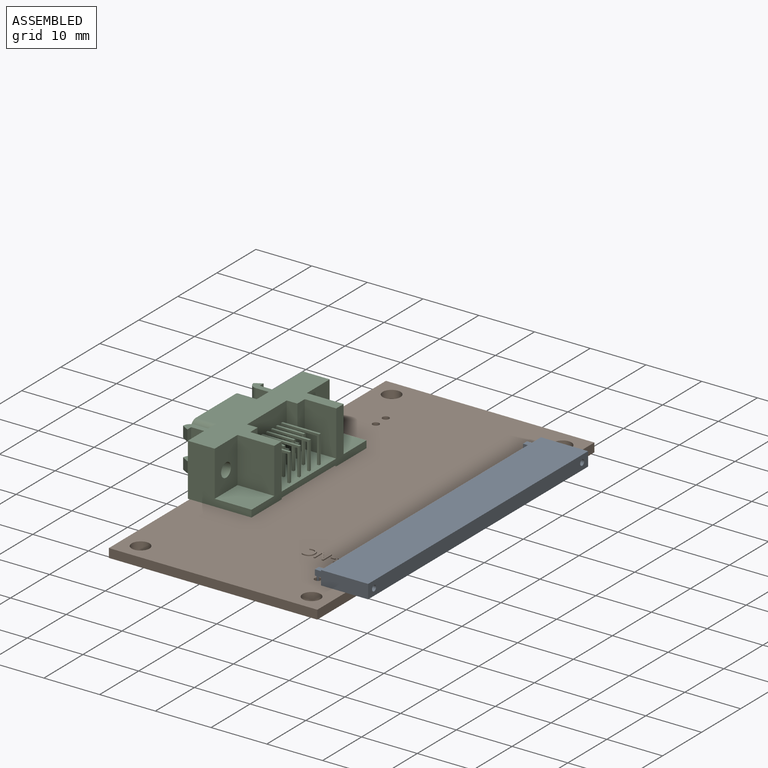
[diagram: assembled view]
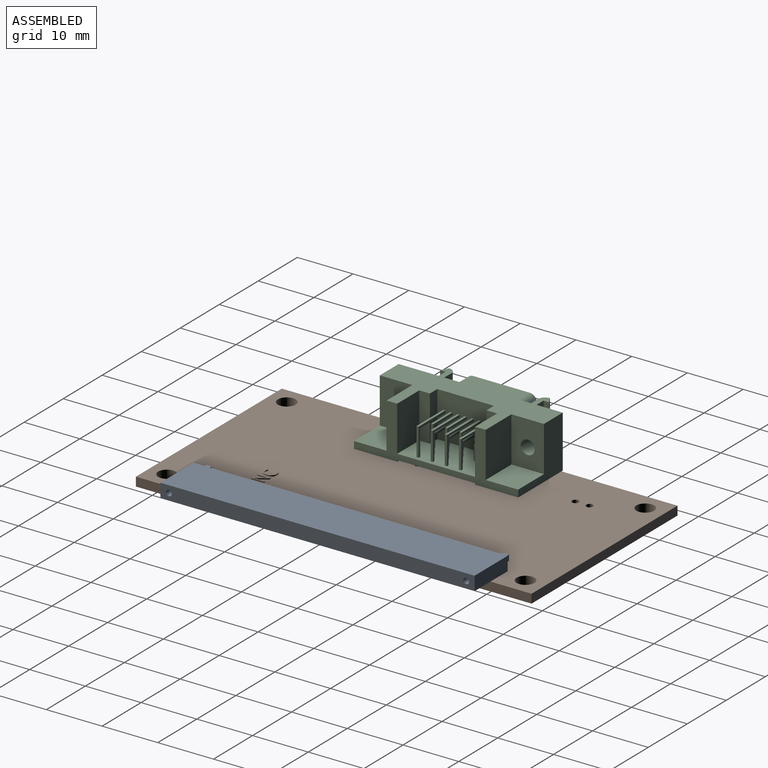
[diagram: assembled view, second angle]
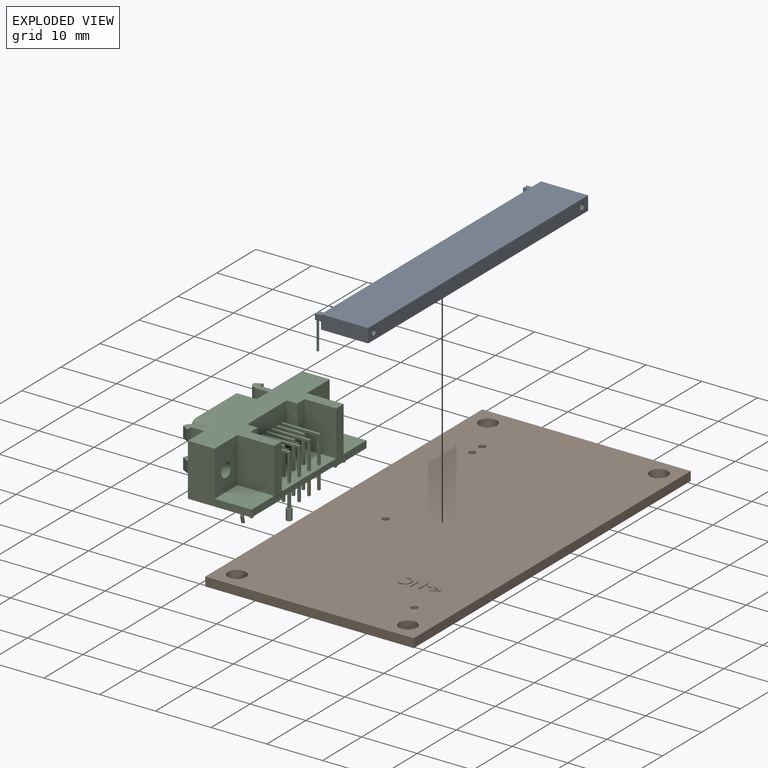
[diagram: exploded view]
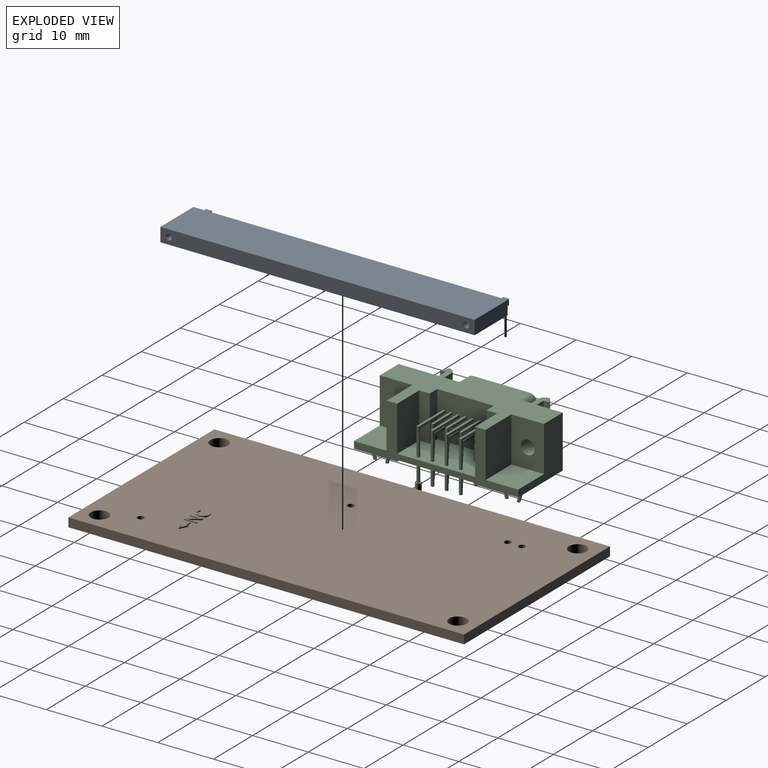
[diagram: exploded view, second angle]
ASSEMBLY  parts=3 mates=4
PART A: 24 faces, bbox 56.4x7x10.3 mm
  f0: plane 56.38x2.5mm, normal (0,0,1), area 138.9mm2, adj f1,f2,f3,f4,f5,f7,f12,f13
  f1: plane 8.45x2.5mm, normal (1,0,0), area 21.1mm2, adj f0,f4,f6,f7
  f2: plane 1.81x1.02mm, normal (-1,0,0), area 1.8mm2, adj f0,f3,f17,f19
  f3: plane 1.81x1.02mm, normal (0,1,0), area 1.8mm2, adj f0,f2,f18,f19
  f4: plane 56.38x8.45mm, normal (0,-1,0), area 476.4mm2, adj f0,f1,f5,f6
  f5: plane 8.45x2.5mm, normal (-1,0,0), area 21.1mm2, adj f0,f4,f6,f7
  f6: plane 56.38x2.5mm, normal (0,0,-1), area 139.3mm2, adj f1,f4,f5,f7,f8,f10
  f7: plane 56.38x8.45mm, normal (0,1,0), area 476.4mm2, adj f0,f1,f5,f6
  f8: cylinder r=0.51mm len=5mm, axis (0,0,1), area 16mm2, adj f6,f9
  f9: plane 1.02x1.02mm, normal (0,0,-1), area 0.8mm2, adj f8
  f10: cylinder r=0.51mm len=5mm, axis (0,0,1), area 16mm2, adj f6,f11
  f11: plane 1.02x1.02mm, normal (0,0,-1), area 0.8mm2, adj f10
  f12: plane 1.81x1.02mm, normal (1,0,0), area 1.8mm2, adj f0,f13,f15,f16
  f13: plane 1.81x1.02mm, normal (0,1,0), area 1.8mm2, adj f0,f12,f14,f16
  f14: plane 1.81x1.02mm, normal (-1,0,0), area 1.8mm2, adj f0,f13,f15,f16
  f15: plane 1.81x1.02mm, normal (0,-1,0), area 1.7mm2, adj f0,f12,f14,f16,f20
  f16: plane 1.02x1.02mm, normal (0,0,1), area 1mm2, adj f12,f13,f14,f15
  f17: plane 1.81x1.02mm, normal (0,-1,0), area 1.7mm2, adj f0,f2,f18,f19,f22
  f18: plane 1.81x1.02mm, normal (1,0,0), area 1.8mm2, adj f0,f3,f17,f19
  f19: plane 1.02x1.02mm, normal (0,0,1), area 1mm2, adj f2,f3,f17,f18
  f20: cylinder r=0.18mm len=5.2mm, axis (0,-1,0), area 5.9mm2, adj f15,f21
  f21: plane 0.36x0.36mm, normal (0,-1,0), area 0.1mm2, adj f20
  f22: cylinder r=0.18mm len=5.2mm, axis (0,-1,0), area 5.9mm2, adj f17,f23
  f23: plane 0.36x0.36mm, normal (0,-1,0), area 0.1mm2, adj f22
PART B: 59 faces, bbox 37.4x1.8x71 mm
  f0: plane 37.4x1.6mm, normal (0,0,1), area 59.8mm2, adj f1,f11,f12,f13
  f1: plane 71x1.6mm, normal (-1,0,0), area 113.6mm2, adj f0,f2,f12,f13
  f2: plane 37.4x1.6mm, normal (0,0,-1), area 59.8mm2, adj f1,f11,f12,f13
  f3: cylinder r=1.6mm len=3.2mm, axis (0,1,0), area 16.1mm2, adj f12,f13
  f4: cylinder r=1.6mm len=3.2mm, axis (0,1,0), area 16.1mm2, adj f12,f13
  f5: cylinder r=1.6mm len=3.2mm, axis (0,1,0), area 16.1mm2, adj f12,f13
  f6: cylinder r=1.6mm len=3.2mm, axis (0,1,0), area 16.1mm2, adj f12,f13
  f7: cylinder r=0.6mm len=1.6mm, axis (0,1,0), area 6mm2, adj f12,f13
  f8: cylinder r=0.6mm len=1.6mm, axis (0,1,0), area 6mm2, adj f12,f13
  f9: cylinder r=0.6mm len=1.6mm, axis (0,1,0), area 6mm2, adj f12,f13
  f10: cylinder r=0.6mm len=1.6mm, axis (0,1,0), area 6mm2, adj f12,f13
  f11: plane 71x1.6mm, normal (1,0,0), area 113.6mm2, adj f0,f2,f12,f13
  f12: plane 71x37.4mm, normal (0,-1,0), area 2618.7mm2, adj f0,f1,f2,f3,f4,f5,f6,f7
  f13: plane 71x37.4mm, normal (0,1,0), area 2615.2mm2, adj f0,f1,f2,f3,f4,f5,f6,f7
  f14: plane 0.23x0.2mm, normal (-1,0,0), area 0mm2, adj f13,f15,f20,f21
  f15: plane 1.2x0.5mm, normal (-0.39,0,0.92), area 0.3mm2, adj f13,f14,f16,f21
  f16: plane 1.2x0.57mm, normal (-0.43,0,-0.9), area 0.3mm2, adj f13,f15,f17,f21
  f17: plane 0.23x0.2mm, normal (-1,0,0), area 0mm2, adj f13,f16,f18,f21
  f18: plane 1.47x0.73mm, normal (0.45,0,0.89), area 0.3mm2, adj f13,f17,f19,f21
  f19: plane 0.2x0.15mm, normal (1,0,0), area 0mm2, adj f13,f18,f20,f21
  f20: plane 1.47x0.65mm, normal (0.4,0,-0.92), area 0.3mm2, adj f13,f14,f19,f21
  f21: plane 1.53x1.47mm, normal (0,1,0), area 0.6mm2, adj f14,f15,f16,f17,f18,f19,f20
  f22: plane 0.75x0.2mm, normal (0,0,-1), area 0.2mm2, adj f13,f23,f25,f26
  f23: plane 0.23x0.2mm, normal (-1,0,0), area 0mm2, adj f13,f22,f24,f26
  f24: plane 0.75x0.2mm, normal (0,0,1), area 0.2mm2, adj f13,f23,f25,f26
  f25: plane 0.23x0.2mm, normal (1,0,0), area 0mm2, adj f13,f22,f24,f26
  f26: plane 0.75x0.23mm, normal (0,1,0), area 0.2mm2, adj f22,f23,f24,f25
  f27: plane 2.24x0.2mm, normal (-1,0,0), area 0.4mm2, adj f13,f28,f41,f42
  f28: plane 0.24x0.2mm, normal (0,0,1), area 0mm2, adj f13,f27,f29,f42
  f29: plane 1.29x0.2mm, normal (1,0,0), area 0.3mm2, adj f13,f28,f30,f42
  f30: extruded ~0.32x0.2mm, area 0.1mm2, adj f13,f29,f31,f42
  f31: extruded ~0.27x0.2mm, area 0.1mm2, adj f13,f30,f32,f42
  f32: plane 0.2x0.01mm, normal (0,0,1), area 0mm2, adj f13,f31,f33,f42
  f33: plane 1.87x1.22mm, normal (-0.84,0,0.55), area 0.4mm2, adj f13,f32,f34,f42
  f34: plane 0.29x0.2mm, normal (0,0,1), area 0.1mm2, adj f13,f33,f35,f42
  f35: plane 2.24x0.2mm, normal (1,0,0), area 0.4mm2, adj f13,f34,f36,f42
  f36: plane 0.24x0.2mm, normal (0,0,-1), area 0mm2, adj f13,f35,f37,f42
  f37: plane 1.27x0.2mm, normal (-1,0,0), area 0.3mm2, adj f13,f36,f38,f42
  f38: extruded ~0.61x0.2mm, area 0.1mm2, adj f13,f37,f39,f42
  f39: plane 0.2x0.01mm, normal (0,0,-1), area 0mm2, adj f13,f38,f40,f42
  f40: plane 1.88x1.22mm, normal (0.84,0,-0.55), area 0.4mm2, adj f13,f39,f41,f42
  f41: plane 0.3x0.2mm, normal (0,0,-1), area 0.1mm2, adj f13,f27,f40,f42
  f42: plane 2.24x1.75mm, normal (0,1,0), area 1.7mm2, adj f27,f28,f29,f30,f31,f32,f33,f34
  f43: extruded ~0.51x0.2mm, area 0.1mm2, adj f13,f44,f57,f58
  f44: plane 0.22x0.2mm, normal (-0.9,0,-0.44), area 0mm2, adj f13,f43,f45,f58
  f45: extruded ~0.62x0.2mm, area 0.1mm2, adj f13,f44,f46,f58
  f46: extruded ~0.58x0.2mm, area 0.1mm2, adj f13,f45,f47,f58
  f47: extruded ~0.4x0.37mm, area 0.1mm2, adj f13,f46,f48,f58
  f48: extruded ~0.61x0.2mm, area 0.1mm2, adj f13,f47,f49,f58
  f49: extruded ~0.85x0.27mm, area 0.2mm2, adj f13,f48,f50,f58
  f50: extruded ~0.76x0.3mm, area 0.2mm2, adj f13,f49,f51,f58
  f51: extruded ~0.57x0.2mm, area 0.1mm2, adj f13,f50,f52,f58
  f52: plane 0.23x0.2mm, normal (-1,0,0), area 0mm2, adj f13,f51,f53,f58
  f53: extruded ~0.53x0.2mm, area 0.1mm2, adj f13,f52,f54,f58
  f54: extruded ~0.59x0.24mm, area 0.1mm2, adj f13,f53,f55,f58
  f55: extruded ~0.68x0.21mm, area 0.1mm2, adj f13,f54,f56,f58
  f56: extruded ~0.67x0.21mm, area 0.1mm2, adj f13,f55,f57,f58
  f57: extruded ~0.58x0.25mm, area 0.1mm2, adj f13,f43,f56,f58
  f58: plane 2.3x1.69mm, normal (0,1,0), area 1.1mm2, adj f43,f44,f45,f46,f47,f48,f49,f50
PART C: 312 faces, bbox 29.5x16.8x14.2 mm
  f0: plane 4.83x0.4mm, normal (0,0,1), area 1.9mm2, adj f99,f213,f214,f252
  f1: plane 3.06x2.47mm, normal (1,0,0), area 2mm2, adj f24,f67,f68,f174,f199,f290
  f2: plane 1x1mm, normal (0,0,1), area 0.6mm2, adj f3,f4,f123,f128,f286
  f3: plane 3.05x0.4mm, normal (0,1,0), area 1.2mm2, adj f2,f4,f17,f128
  f4: plane 3.05x0.4mm, normal (-1,0,0), area 1.2mm2, adj f2,f3,f17,f123
  f5: plane 8.12x5.33mm, normal (0,0,-1), area 43.3mm2, adj f6,f7,f11,f14
  f6: cylinder r=1.27mm len=5.33mm, axis (0,1,0), area 8.9mm2, adj f5,f7,f8,f11
  f7: plane 12.7x6.35mm, normal (0,-1,0), area 48.4mm2, adj f5,f6,f8,f9,f10,f12,f13,f14
  f8: plane 5.33x3.81mm, normal (0.97,0,-0.26), area 21mm2, adj f6,f7,f9,f11
  f9: cylinder r=1.27mm len=5.33mm, axis (0,1,0), area 12.4mm2, adj f7,f8,f10,f11
  f10: plane 10.16x5.33mm, normal (0,0,1), area 54.2mm2, adj f7,f9,f11,f12
  f11: plane 29.46x9.4mm, normal (0,-1,0), area 176.1mm2, adj f5,f6,f8,f9,f10,f12,f13,f14
  f12: cylinder r=1.27mm len=5.33mm, axis (0,1,0), area 12.4mm2, adj f7,f10,f11,f13
  f13: plane 5.33x3.81mm, normal (-0.97,0,-0.26), area 21mm2, adj f7,f11,f12,f14
  f14: cylinder r=1.27mm len=5.33mm, axis (0,1,0), area 8.9mm2, adj f5,f7,f11,f13
  f15: plane 8.13x6.6mm, normal (-1,0,0), area 53.7mm2, adj f164,f165,f166,f204
  f16: plane 8.13x5.65mm, normal (1,0,0), area 45.9mm2, adj f18,f166,f174,f204
  f17: plane 13.97x11.43mm, normal (0,0,-1), area 157.5mm2, adj f3,f4,f11,f29,f30,f31,f77,f78
  f18: plane 8.13x1.91mm, normal (0,1,0), area 15.5mm2, adj f16,f20,f166,f174
  f19: plane 1.16x0.4mm, normal (0.96,0,-0.26), area 0.5mm2, adj f205,f206,f222,f241
  f20: plane 8.13x1.91mm, normal (1,0,0), area 15.5mm2, adj f18,f24,f166,f174
  f21: cylinder r=1.27mm len=1.97mm, axis (0,0,-1), area 3.9mm2, adj f22,f76,f92,f144
  f22: plane 1.97x1.27mm, normal (0.87,-0.5,0), area 2.9mm2, adj f21,f23,f92,f144
  f23: plane 1.97x0.99mm, normal (0,1,0), area 1.9mm2, adj f22,f75,f92,f144
  f24: plane 10.16x8.13mm, normal (0,1,0), area 80.4mm2, adj f1,f20,f25,f33,f34,f41,f44,f46
  f25: plane 8.13x1.91mm, normal (-1,0,0), area 15.5mm2, adj f24,f133,f166,f174
  f26: plane 1.97x0.99mm, normal (0,1,0), area 1.9mm2, adj f27,f28,f35,f36
  f27: plane 2x1.78mm, normal (0,0,1), area 2.2mm2, adj f26,f28,f36,f37,f124,f302
  f28: plane 1.97x1.27mm, normal (-0.87,-0.5,0), area 2.9mm2, adj f26,f27,f35,f124
  f29: plane 3.05x0.4mm, normal (-1,0,0), area 1.2mm2, adj f17,f30,f31,f167
  f30: plane 3.05x0.4mm, normal (0,-1,0), area 1.2mm2, adj f17,f29,f79,f167
  f31: plane 3.05x0.4mm, normal (0,1,0), area 1.2mm2, adj f17,f29,f79,f167
  f32: plane 2.47x0.4mm, normal (0,1,0), area 1mm2, adj f33,f34,f102,f174
  f33: plane 2.47x1.15mm, normal (1,0,0), area 1.3mm2, adj f24,f32,f102,f104,f174,f291
  f34: plane 2.47x1.15mm, normal (-1,0,0), area 1.3mm2, adj f24,f32,f102,f104,f174,f291
  f35: plane 4.83x2mm, normal (0,0,-1), area 5.3mm2, adj f11,f26,f28,f36,f37,f124
  f36: plane 7.11x3.56mm, normal (-1,0,0), area 23.7mm2, adj f11,f26,f27,f35,f91,f229,f282,f302
  f37: plane 7.11x3.56mm, normal (1,0,0), area 23.7mm2, adj f11,f27,f35,f91,f124,f282,f302,f308
  f38: plane 4.83x0.2mm, normal (1,0,0), area 1mm2, adj f39,f235,f252,f299
  f39: plane 0.4x0.2mm, normal (0,-1,0), area 0.1mm2, adj f38,f235,f246,f299
  f40: plane 4.83x0.2mm, normal (-1,0,0), area 1mm2, adj f62,f198,f235,f252
  f41: plane 3.06x2.47mm, normal (1,0,0), area 2mm2, adj f24,f43,f59,f60,f93,f174
  f42: plane 4.64x0.4mm, normal (0,-1,0), area 1.9mm2, adj f46,f89,f145,f174
  f43: plane 2.07x0.4mm, normal (0,-1,0), area 0.8mm2, adj f41,f60,f174,f275
  f44: plane 3.06x2.47mm, normal (1,0,0), area 2mm2, adj f24,f45,f136,f174,f179,f237
  f45: plane 2.07x0.4mm, normal (0,-1,0), area 0.8mm2, adj f44,f136,f174,f261
  f46: plane 6.87x5.04mm, normal (1,0,0), area 4.6mm2, adj f24,f42,f61,f89,f141,f174
  f47: plane 0.4x0.2mm, normal (0,-1,0), area 0.1mm2, adj f48,f49,f161,f234
  f48: plane 4.83x0.2mm, normal (1,0,0), area 1mm2, adj f47,f161,f234,f252
  f49: plane 4.83x0.2mm, normal (-1,0,0), area 1mm2, adj f47,f161,f234,f252
  f50: plane 2.66x0.4mm, normal (0,0,-1), area 1.1mm2, adj f24,f170,f171,f172
  f51: plane 1.97x1.27mm, normal (0.87,-0.5,0), area 2.9mm2, adj f74,f143,f176,f251
  f52: plane 3.06x0.4mm, normal (0,0,1), area 1.2mm2, adj f24,f171,f172,f245
  f53: plane 4.83x0.4mm, normal (0,0,-1), area 1.9mm2, adj f191,f192,f252,f276
  f54: plane 4.83x0.4mm, normal (0,0,-1), area 1.9mm2, adj f86,f87,f252,f254
  f55: plane 4.83x0.4mm, normal (0,0,-1), area 1.9mm2, adj f94,f95,f96,f252
  f56: plane 0.4x0.4mm, normal (0,0,-1), area 0.2mm2, adj f181,f212,f281,f288
  f57: plane 0.4x0.4mm, normal (0,0,-1), area 0.2mm2, adj f200,f201,f202,f211
  f58: plane 0.4x0.4mm, normal (0,0,-1), area 0.2mm2, adj f105,f106,f107,f185
  f59: plane 3.06x0.4mm, normal (0,0,1), area 1.2mm2, adj f24,f41,f93,f275
  f60: plane 2.66x0.4mm, normal (0,0,-1), area 1.1mm2, adj f24,f41,f43,f275
  f61: plane 6.87x0.4mm, normal (0,0,1), area 2.7mm2, adj f24,f46,f141,f145
  f62: plane 0.4x0.2mm, normal (0,-1,0), area 0.1mm2, adj f40,f63,f198,f235
  f63: plane 4.83x0.2mm, normal (1,0,0), area 1mm2, adj f62,f198,f235,f252
  f64: plane 0.4x0.4mm, normal (0,0,-1), area 0.2mm2, adj f125,f126,f236,f260
  f65: plane 0.4x0.4mm, normal (0,0,-1), area 0.2mm2, adj f115,f116,f117,f190
  f66: plane 0.4x0.4mm, normal (0,0,-1), area 0.2mm2, adj f127,f182,f283,f284
  f67: plane 3.06x0.4mm, normal (0,0,1), area 1.2mm2, adj f1,f24,f199,f289
  f68: plane 2.66x0.4mm, normal (0,0,-1), area 1.1mm2, adj f1,f24,f289,f290
  f69: plane 6.47x0.4mm, normal (0,0,-1), area 2.6mm2, adj f24,f193,f195,f215
  f70: plane 5.04x4.96mm, normal (1,0,0), area 3.8mm2, adj f24,f72,f85,f135,f174,f310
  f71: plane 2.47x1.15mm, normal (-1,0,0), area 1.3mm2, adj f24,f129,f146,f148,f152,f174
  f72: plane 5.04x0.4mm, normal (0,1,0), area 2mm2, adj f70,f85,f174,f248
  f73: plane 6.87x0.4mm, normal (0,0,1), area 2.7mm2, adj f24,f151,f218,f220
  f74: plane 4.83x2mm, normal (0,0,-1), area 5.3mm2, adj f11,f51,f75,f76,f176,f251
  f75: plane 7.11x3.56mm, normal (1,0,0), area 23.7mm2, adj f11,f23,f74,f92,f142,f143,f144,f176
  f76: plane 7.11x3.56mm, normal (-1,0,0), area 23.7mm2, adj f11,f21,f74,f92,f142,f143,f144,f251
  f77: plane 3.05x0.4mm, normal (-1,0,0), area 1.2mm2, adj f17,f78,f168,f189
  f78: plane 3.05x0.4mm, normal (0,-1,0), area 1.2mm2, adj f17,f77,f137,f168
  f79: plane 3.05x0.4mm, normal (1,0,0), area 1.2mm2, adj f17,f30,f31,f167
  f80: plane 0.4x0.2mm, normal (0,-1,0), area 0.1mm2, adj f81,f82,f234,f305
  f81: plane 4.83x0.2mm, normal (1,0,0), area 1mm2, adj f80,f234,f252,f305
  f82: plane 4.83x0.2mm, normal (-1,0,0), area 1mm2, adj f80,f234,f252,f305
  f83: plane 0.75x0.4mm, normal (0,0,-1), area 0.3mm2, adj f24,f149,f177,f178
  f84: plane 1.15x0.4mm, normal (0,0,1), area 0.5mm2, adj f24,f149,f150,f177
  f85: plane 4.96x0.4mm, normal (0,0,1), area 2mm2, adj f24,f70,f72,f248
  f86: plane 4.83x0.2mm, normal (-1,0,0), area 1mm2, adj f54,f87,f234,f252
  f87: plane 0.4x0.2mm, normal (0,-1,0), area 0.1mm2, adj f54,f86,f234,f254
  f88: plane 1.16x0.4mm, normal (-0.96,0,-0.26), area 0.5mm2, adj f90,f134,f269,f304
  f89: plane 6.47x0.4mm, normal (0,0,-1), area 2.6mm2, adj f24,f42,f46,f145
  f90: plane 0.41x0.4mm, normal (0,0,-1), area 0.2mm2, adj f88,f217,f269,f304
  f91: plane 4.83x2mm, normal (0,0,1), area 5.3mm2, adj f11,f36,f37,f229,f307,f308
  f92: plane 4.83x2mm, normal (0,0,1), area 5.3mm2, adj f11,f21,f22,f23,f75,f76
  f93: plane 2.47x0.4mm, normal (0,1,0), area 1mm2, adj f41,f59,f174,f275
  f94: plane 0.4x0.2mm, normal (0,-1,0), area 0.1mm2, adj f55,f95,f96,f234
  f95: plane 4.83x0.2mm, normal (1,0,0), area 1mm2, adj f55,f94,f234,f252
  f96: plane 4.83x0.2mm, normal (-1,0,0), area 1mm2, adj f55,f94,f234,f252
  f97: plane 4.83x0.2mm, normal (1,0,0), area 1mm2, adj f98,f196,f235,f252
  f98: plane 0.4x0.2mm, normal (0,-1,0), area 0.1mm2, adj f97,f196,f235,f292
  f99: plane 4.83x0.2mm, normal (-1,0,0), area 1mm2, adj f0,f214,f235,f252
  f100: plane 4.83x0.4mm, normal (0,0,-1), area 1.9mm2, adj f225,f227,f252,f293
  f101: plane 4.83x0.4mm, normal (0,0,-1), area 1.9mm2, adj f162,f163,f226,f252
  f102: plane 1.15x0.4mm, normal (0,0,1), area 0.5mm2, adj f24,f32,f33,f34
  f103: plane 6.87x0.4mm, normal (0,0,1), area 2.7mm2, adj f24,f138,f139,f140
  f104: plane 0.75x0.4mm, normal (0,0,-1), area 0.3mm2, adj f24,f33,f34,f291
  f105: plane 3.05x0.4mm, normal (1,0,0), area 1.2mm2, adj f17,f58,f106,f107
  f106: plane 3.05x0.4mm, normal (0,1,0), area 1.2mm2, adj f17,f58,f105,f185
  f107: plane 3.05x0.4mm, normal (0,-1,0), area 1.2mm2, adj f17,f58,f105,f185
  f108: plane 0.4x0.4mm, normal (0,0,-1), area 0.2mm2, adj f184,f186,f187,f188
  f109: plane 4.83x0.2mm, normal (-1,0,0), area 1mm2, adj f111,f235,f252,f298
  f110: plane 4.83x0.2mm, normal (1,0,0), area 1mm2, adj f224,f235,f252,f266
  f111: plane 0.4x0.2mm, normal (0,-1,0), area 0.1mm2, adj f109,f235,f247,f298
  f112: plane 1.15x0.4mm, normal (-0.96,0,0.26), area 0.5mm2, adj f113,f256,f257,f262
  f113: plane 0.41x0.4mm, normal (0,0,-1), area 0.2mm2, adj f112,f114,f256,f257
  f114: plane 1.14x0.4mm, normal (0.96,0,-0.26), area 0.5mm2, adj f113,f255,f256,f257
  f115: plane 3.05x0.4mm, normal (-1,0,0), area 1.2mm2, adj f17,f65,f116,f117
  f116: plane 3.05x0.4mm, normal (0,-1,0), area 1.2mm2, adj f17,f65,f115,f190
  f117: plane 3.05x0.4mm, normal (0,1,0), area 1.2mm2, adj f17,f65,f115,f190
  f118: plane 3.05x0.4mm, normal (0,1,0), area 1.2mm2, adj f17,f119,f120,f216
  f119: plane 3.05x0.4mm, normal (-1,0,0), area 1.2mm2, adj f17,f118,f122,f216
  f120: plane 3.05x0.4mm, normal (1,0,0), area 1.2mm2, adj f17,f118,f122,f216
  f121: plane 11.43x0.25mm, normal (-1,0,0), area 2.9mm2, adj f11,f17,f204,f294
  f122: plane 3.05x0.4mm, normal (0,-1,0), area 1.2mm2, adj f17,f119,f120,f216
  f123: plane 3.05x0.4mm, normal (0,-1,0), area 1.2mm2, adj f2,f4,f17,f128
  f124: cylinder r=1.27mm len=1.97mm, axis (0,0,-1), area 3.9mm2, adj f27,f28,f35,f37
  f125: plane 3.05x0.4mm, normal (-1,0,0), area 1.2mm2, adj f17,f64,f126,f236
  f126: plane 3.05x0.4mm, normal (0,-1,0), area 1.2mm2, adj f17,f64,f125,f260
  f127: plane 3.05x0.4mm, normal (-1,0,0), area 1.2mm2, adj f17,f66,f182,f284
  f128: plane 3.05x0.4mm, normal (1,0,0), area 1.2mm2, adj f2,f3,f17,f123
  f129: plane 2.07x0.4mm, normal (0,-1,0), area 0.8mm2, adj f71,f131,f146,f174
  f130: plane 5.04x0.4mm, normal (0,1,0), area 2mm2, adj f159,f174,f278,f280
  f131: plane 2.47x1.15mm, normal (1,0,0), area 1.3mm2, adj f24,f129,f146,f148,f152,f174
  f132: plane 8.13x5.84mm, normal (0,1,0), area 42.6mm2, adj f153,f154,f155,f166,f306
  f133: plane 8.13x1.91mm, normal (0,1,0), area 15.5mm2, adj f25,f166,f174,f175
  f134: plane 1.12x0.4mm, normal (-0.96,0,0.26), area 0.5mm2, adj f88,f269,f294,f304
  f135: plane 4.56x0.4mm, normal (0,0,-1), area 1.8mm2, adj f24,f70,f248,f310
  f136: plane 2.66x0.4mm, normal (0,0,-1), area 1.1mm2, adj f24,f44,f45,f261
  f137: plane 3.05x0.4mm, normal (1,0,0), area 1.2mm2, adj f17,f78,f168,f189
  f138: plane 5.04x0.4mm, normal (0,1,0), area 2mm2, adj f103,f139,f140,f174
  f139: plane 6.87x5.04mm, normal (1,0,0), area 4.6mm2, adj f24,f103,f138,f160,f174,f268
  f140: plane 6.87x5.04mm, normal (-1,0,0), area 4.6mm2, adj f24,f103,f138,f160,f174,f268
  f141: plane 5.04x0.4mm, normal (0,1,0), area 2mm2, adj f46,f61,f145,f174
  f142: plane 3.18x1.02mm, normal (0,-1,0), area 3.2mm2, adj f75,f76,f143,f144
  f143: plane 2x1.78mm, normal (0,0,1), area 2.2mm2, adj f51,f75,f76,f142,f176,f251
  f144: plane 2x1.78mm, normal (0,0,-1), area 2.2mm2, adj f21,f22,f23,f75,f76,f142
  f145: plane 6.87x5.04mm, normal (-1,0,0), area 4.6mm2, adj f24,f42,f61,f89,f141,f174
  f146: plane 0.75x0.4mm, normal (0,0,-1), area 0.3mm2, adj f24,f71,f129,f131
  f147: plane 6.87x0.4mm, normal (0,0,1), area 2.7mm2, adj f24,f193,f194,f215
  f148: plane 1.15x0.4mm, normal (0,0,1), area 0.5mm2, adj f24,f71,f131,f152
  f149: plane 2.47x1.15mm, normal (-1,0,0), area 1.3mm2, adj f24,f83,f84,f150,f174,f178
  f150: plane 2.47x0.4mm, normal (0,1,0), area 1mm2, adj f84,f149,f174,f177
  f151: plane 6.87x5.04mm, normal (-1,0,0), area 4.6mm2, adj f24,f73,f174,f180,f219,f220
  f152: plane 2.47x0.4mm, normal (0,1,0), area 1mm2, adj f71,f131,f148,f174
  f153: plane 6.6x5.84mm, normal (0,0,1), area 38.6mm2, adj f132,f154,f155,f204
  f154: plane 11.43x9.4mm, normal (1,0,0), area 53.7mm2, adj f11,f132,f153,f166,f204,f294
  f155: plane 8.13x6.6mm, normal (1,0,0), area 53.7mm2, adj f132,f153,f166,f204
  f156: plane 1.14x0.4mm, normal (0.97,0,-0.25), area 0.5mm2, adj f157,f158,f239,f285
  f157: plane 2.29x0.73mm, normal (0,1,0), area 0.9mm2, adj f156,f183,f239,f240,f285,f301
  f158: plane 2.29x0.73mm, normal (0,-1,0), area 0.9mm2, adj f156,f183,f239,f240,f285,f301
  f159: plane 4.96x0.4mm, normal (0,0,1), area 2mm2, adj f24,f130,f278,f280
  f160: plane 4.64x0.4mm, normal (0,-1,0), area 1.9mm2, adj f139,f140,f174,f268
  f161: plane 4.83x0.4mm, normal (0,0,-1), area 1.9mm2, adj f47,f48,f49,f252
  f162: plane 4.83x0.2mm, normal (1,0,0), area 1mm2, adj f101,f163,f234,f252
  f163: plane 0.4x0.2mm, normal (0,-1,0), area 0.1mm2, adj f101,f162,f226,f234
  f164: plane 8.13x5.84mm, normal (0,1,0), area 42.6mm2, adj f15,f165,f166,f173,f259
  f165: plane 6.6x5.84mm, normal (0,0,1), area 38.6mm2, adj f15,f164,f204,f259
  f166: plane 29.46x11.43mm, normal (0,0,1), area 161.3mm2, adj f11,f15,f16,f18,f20,f24,f25,f132
  f167: plane 0.4x0.4mm, normal (0,0,-1), area 0.2mm2, adj f29,f30,f31,f79
  f168: plane 0.4x0.4mm, normal (0,0,-1), area 0.2mm2, adj f77,f78,f137,f189
  f169: plane 0.4x0.4mm, normal (0,0,-1), area 0.2mm2, adj f230,f231,f232,f263
  f170: plane 2.07x0.4mm, normal (0,-1,0), area 0.8mm2, adj f50,f171,f172,f174
  f171: plane 3.06x2.47mm, normal (-1,0,0), area 2mm2, adj f24,f50,f52,f170,f174,f245
  f172: plane 3.06x2.47mm, normal (1,0,0), area 2mm2, adj f24,f50,f52,f170,f174,f245
  f173: cylinder r=1.24mm len=4.83mm, axis (0,1,0), area 37.7mm2, adj f11,f164
  f174: plane 13.97x7.56mm, normal (0,0,1), area 96.1mm2, adj f1,f16,f18,f20,f24,f25,f32,f33
  f175: plane 8.13x5.65mm, normal (-1,0,0), area 45.9mm2, adj f133,f166,f174,f204
  f176: plane 1.97x0.99mm, normal (0,1,0), area 1.9mm2, adj f51,f74,f75,f143
  f177: plane 2.47x1.15mm, normal (1,0,0), area 1.3mm2, adj f24,f83,f84,f150,f174,f178
  f178: plane 2.07x0.4mm, normal (0,-1,0), area 0.8mm2, adj f83,f149,f174,f177
  f179: plane 3.06x0.4mm, normal (0,0,1), area 1.2mm2, adj f24,f44,f237,f261
  f180: plane 6.47x0.4mm, normal (0,0,-1), area 2.6mm2, adj f24,f151,f218,f219
  f181: plane 3.05x0.4mm, normal (0,1,0), area 1.2mm2, adj f17,f56,f212,f288
  f182: plane 3.05x0.4mm, normal (0,1,0), area 1.2mm2, adj f17,f66,f127,f283
  f183: plane 1.14x0.4mm, normal (-0.97,0,0.25), area 0.5mm2, adj f157,f158,f285,f301
  f184: plane 3.05x0.4mm, normal (-1,0,0), area 1.2mm2, adj f17,f108,f186,f187
  f185: plane 3.05x0.4mm, normal (-1,0,0), area 1.2mm2, adj f17,f58,f106,f107
  f186: plane 3.05x0.4mm, normal (0,1,0), area 1.2mm2, adj f17,f108,f184,f188
  f187: plane 3.05x0.4mm, normal (0,-1,0), area 1.2mm2, adj f17,f108,f184,f188
  f188: plane 3.05x0.4mm, normal (1,0,0), area 1.2mm2, adj f17,f108,f186,f187
  f189: plane 3.05x0.4mm, normal (0,1,0), area 1.2mm2, adj f17,f77,f137,f168
  f190: plane 3.05x0.4mm, normal (1,0,0), area 1.2mm2, adj f17,f65,f116,f117
  f191: plane 4.83x0.2mm, normal (1,0,0), area 1mm2, adj f53,f192,f234,f252
  f192: plane 0.4x0.2mm, normal (0,-1,0), area 0.1mm2, adj f53,f191,f234,f276
  f193: plane 6.87x5.04mm, normal (-1,0,0), area 4.6mm2, adj f24,f69,f147,f174,f194,f195
  f194: plane 5.04x0.4mm, normal (0,1,0), area 2mm2, adj f147,f174,f193,f215
  f195: plane 4.64x0.4mm, normal (0,-1,0), area 1.9mm2, adj f69,f174,f193,f215
  f196: plane 4.83x0.4mm, normal (0,0,1), area 1.9mm2, adj f97,f98,f252,f292
  f197: plane 0.64x0.64mm, normal (0,-1,0), area 0.3mm2, adj f309
  f198: plane 4.83x0.4mm, normal (0,0,1), area 1.9mm2, adj f40,f62,f63,f252
  f199: plane 2.47x0.4mm, normal (0,1,0), area 1mm2, adj f1,f67,f174,f289
  f200: plane 3.05x0.4mm, normal (-1,0,0), area 1.2mm2, adj f17,f57,f201,f202
  f201: plane 3.05x0.4mm, normal (0,-1,0), area 1.2mm2, adj f17,f57,f200,f211
  f202: plane 3.05x0.4mm, normal (0,1,0), area 1.2mm2, adj f17,f57,f200,f211
  f203: plane 11.43x0.25mm, normal (1,0,0), area 2.9mm2, adj f11,f17,f204,f285
  f204: plane 29.46x9.4mm, normal (0,1,0), area 64.8mm2, adj f15,f16,f17,f121,f153,f154,f155,f165
  f205: plane 2.29x0.73mm, normal (0,1,0), area 0.9mm2, adj f19,f206,f207,f238,f241,f285
  f206: plane 1.12x0.4mm, normal (0.96,0,0.26), area 0.5mm2, adj f19,f205,f222,f285
  f207: plane 1.14x0.4mm, normal (-0.97,0,-0.25), area 0.5mm2, adj f205,f222,f238,f285
  f208: plane 4.64x0.4mm, normal (0,-1,0), area 1.9mm2, adj f174,f209,f210,f258
  f209: plane 5.04x4.96mm, normal (-1,0,0), area 3.8mm2, adj f24,f174,f208,f258,f271,f303
  f210: plane 5.04x4.96mm, normal (1,0,0), area 3.8mm2, adj f24,f174,f208,f258,f271,f303
  f211: plane 3.05x0.4mm, normal (1,0,0), area 1.2mm2, adj f17,f57,f201,f202
  f212: plane 3.05x0.4mm, normal (1,0,0), area 1.2mm2, adj f17,f56,f181,f281
  f213: plane 4.83x0.2mm, normal (1,0,0), area 1mm2, adj f0,f214,f235,f252
  f214: plane 0.4x0.2mm, normal (0,-1,0), area 0.1mm2, adj f0,f99,f213,f235
  f215: plane 6.87x5.04mm, normal (1,0,0), area 4.6mm2, adj f24,f69,f147,f174,f194,f195
  f216: plane 0.4x0.4mm, normal (0,0,-1), area 0.2mm2, adj f118,f119,f120,f122
  f217: plane 1.15x0.4mm, normal (0.96,0,0.26), area 0.5mm2, adj f90,f269,f270,f304
  f218: plane 6.87x5.04mm, normal (1,0,0), area 4.6mm2, adj f24,f73,f174,f180,f219,f220
  f219: plane 4.64x0.4mm, normal (0,-1,0), area 1.9mm2, adj f151,f174,f180,f218
  f220: plane 5.04x0.4mm, normal (0,1,0), area 2mm2, adj f73,f151,f174,f218
  f221: plane 4.56x0.4mm, normal (0,0,-1), area 1.8mm2, adj f24,f278,f279,f280
  f222: plane 2.29x0.73mm, normal (0,-1,0), area 0.9mm2, adj f19,f206,f207,f238,f241,f285
  f223: plane 4.83x0.4mm, normal (0,0,1), area 1.9mm2, adj f252,f274,f277,f287
  f224: plane 4.83x0.4mm, normal (0,0,1), area 1.9mm2, adj f110,f252,f266,f267
  f225: plane 4.83x0.2mm, normal (1,0,0), area 1mm2, adj f100,f227,f234,f252
  f226: plane 4.83x0.2mm, normal (-1,0,0), area 1mm2, adj f101,f163,f234,f252
  f227: plane 0.4x0.2mm, normal (0,-1,0), area 0.1mm2, adj f100,f225,f234,f293
  f228: plane 3.05x0.4mm, normal (0,-1,0), area 1.2mm2, adj f17,f250,f265,f297
  f229: plane 1.97x0.99mm, normal (0,1,0), area 1.9mm2, adj f36,f91,f282,f307
  f230: plane 3.05x0.4mm, normal (-1,0,0), area 1.2mm2, adj f17,f169,f231,f232
  f231: plane 3.05x0.4mm, normal (0,-1,0), area 1.2mm2, adj f17,f169,f230,f263
  f232: plane 3.05x0.4mm, normal (0,1,0), area 1.2mm2, adj f17,f169,f230,f263
  f233: plane 5.33x2.58mm, normal (1,0,0), area 13.7mm2, adj f7,f234,f235,f252
  f234: plane 9.36x5.33mm, normal (0,0,-1), area 36.5mm2, adj f7,f47,f48,f49,f80,f81,f82,f86
  f235: plane 9.36x5.33mm, normal (0,0,1), area 36.5mm2, adj f7,f38,f39,f40,f62,f63,f97,f98
  f236: plane 3.05x0.4mm, normal (0,1,0), area 1.2mm2, adj f17,f64,f125,f260
  f237: plane 2.47x0.4mm, normal (0,1,0), area 1mm2, adj f44,f174,f179,f261
  f238: plane 1.15x0.4mm, normal (-0.96,0,0.26), area 0.5mm2, adj f205,f207,f222,f241
  f239: plane 1.15x0.4mm, normal (0.96,0,0.26), area 0.5mm2, adj f156,f157,f158,f240
  f240: plane 0.41x0.4mm, normal (0,0,-1), area 0.2mm2, adj f157,f158,f239,f301
  f241: plane 0.41x0.4mm, normal (0,0,-1), area 0.2mm2, adj f19,f205,f222,f238
  f242: plane 0.76x0.38mm, normal (0.89,0,0.45), area 0.1mm2, adj f7,f243,f244,f253
  f243: plane 0.76x0.13mm, normal (0,0,-1), area 0.1mm2, adj f7,f242,f244,f253
  f244: plane 0.76x0.38mm, normal (-0.89,0,0.45), area 0.1mm2, adj f7,f242,f243,f253
  f245: plane 2.47x0.4mm, normal (0,1,0), area 1mm2, adj f52,f171,f172,f174
  f246: plane 4.83x0.2mm, normal (-1,0,0), area 1mm2, adj f39,f235,f252,f299
  f247: plane 4.83x0.2mm, normal (1,0,0), area 1mm2, adj f111,f235,f252,f298
  f248: plane 5.04x4.96mm, normal (-1,0,0), area 3.8mm2, adj f24,f72,f85,f135,f174,f310
  f249: plane 0.4x0.4mm, normal (0,0,-1), area 0.2mm2, adj f264,f295,f296,f300
  f250: plane 0.4x0.4mm, normal (0,0,-1), area 0.2mm2, adj f228,f265,f273,f297
  f251: cylinder r=1.27mm len=1.97mm, axis (0,0,-1), area 3.9mm2, adj f51,f74,f76,f143
  f252: plane 9.36x2.58mm, normal (0,-1,0), area 23mm2, adj f0,f38,f40,f48,f49,f53,f54,f55
  f253: plane 0.76x0.76mm, normal (0,-1,0), area 0.3mm2, adj f242,f243,f244
  f254: plane 4.83x0.2mm, normal (1,0,0), area 1mm2, adj f54,f87,f234,f252
  f255: plane 1.14x0.4mm, normal (0.97,0,0.25), area 0.5mm2, adj f114,f256,f257,f294
  f256: plane 2.29x0.73mm, normal (0,-1,0), area 0.9mm2, adj f112,f113,f114,f255,f262,f294
  f257: plane 2.29x0.73mm, normal (0,1,0), area 0.9mm2, adj f112,f113,f114,f255,f262,f294
  f258: plane 4.56x0.4mm, normal (0,0,-1), area 1.8mm2, adj f24,f208,f209,f210
  f259: plane 11.43x9.4mm, normal (-1,0,0), area 53.7mm2, adj f11,f164,f165,f166,f204,f285
  f260: plane 3.05x0.4mm, normal (1,0,0), area 1.2mm2, adj f17,f64,f126,f236
  f261: plane 3.06x2.47mm, normal (-1,0,0), area 2mm2, adj f24,f45,f136,f174,f179,f237
  f262: plane 1.14x0.4mm, normal (-0.97,0,-0.25), area 0.5mm2, adj f112,f256,f257,f294
  f263: plane 3.05x0.4mm, normal (1,0,0), area 1.2mm2, adj f17,f169,f231,f232
  f264: plane 3.05x0.4mm, normal (-1,0,0), area 1.2mm2, adj f17,f249,f295,f300
  f265: plane 3.05x0.4mm, normal (-1,0,0), area 1.2mm2, adj f17,f228,f250,f273
  f266: plane 0.4x0.2mm, normal (0,-1,0), area 0.1mm2, adj f110,f224,f235,f267
  f267: plane 4.83x0.2mm, normal (-1,0,0), area 1mm2, adj f224,f235,f252,f266
  f268: plane 6.47x0.4mm, normal (0,0,-1), area 2.6mm2, adj f24,f139,f140,f160
  f269: plane 2.29x0.73mm, normal (0,-1,0), area 0.9mm2, adj f88,f90,f134,f217,f270,f294
  f270: plane 1.14x0.4mm, normal (0.97,0,-0.25), area 0.5mm2, adj f217,f269,f294,f304
  f271: plane 4.96x0.4mm, normal (0,0,1), area 2mm2, adj f24,f209,f210,f303
  f272: plane 5.33x2.58mm, normal (-1,0,0), area 13.7mm2, adj f7,f234,f235,f252
  f273: plane 3.05x0.4mm, normal (0,1,0), area 1.2mm2, adj f17,f250,f265,f297
  f274: plane 4.83x0.2mm, normal (1,0,0), area 1mm2, adj f223,f235,f252,f287
  f275: plane 3.06x2.47mm, normal (-1,0,0), area 2mm2, adj f24,f43,f59,f60,f93,f174
  f276: plane 4.83x0.2mm, normal (-1,0,0), area 1mm2, adj f53,f192,f234,f252
  f277: plane 4.83x0.2mm, normal (-1,0,0), area 1mm2, adj f223,f235,f252,f287
  f278: plane 5.04x4.96mm, normal (1,0,0), area 3.8mm2, adj f24,f130,f159,f174,f221,f279
  f279: plane 4.64x0.4mm, normal (0,-1,0), area 1.9mm2, adj f174,f221,f278,f280
  f280: plane 5.04x4.96mm, normal (-1,0,0), area 3.8mm2, adj f24,f130,f159,f174,f221,f279
  f281: plane 3.05x0.4mm, normal (0,-1,0), area 1.2mm2, adj f17,f56,f212,f288
  f282: plane 2x1.78mm, normal (0,0,-1), area 2.2mm2, adj f36,f37,f229,f302,f307,f308
  f283: plane 3.05x0.4mm, normal (1,0,0), area 1.2mm2, adj f17,f66,f182,f284
  f284: plane 3.05x0.4mm, normal (0,-1,0), area 1.2mm2, adj f17,f66,f127,f283
  f285: plane 11.43x7.75mm, normal (0,0,-1), area 88.2mm2, adj f11,f156,f157,f158,f183,f203,f204,f205
  f286: cylinder r=0.5mm len=2mm, axis (0,0,-1), area 6.3mm2, adj f2,f311
  f287: plane 0.4x0.2mm, normal (0,-1,0), area 0.1mm2, adj f223,f235,f274,f277
  f288: plane 3.05x0.4mm, normal (-1,0,0), area 1.2mm2, adj f17,f56,f181,f281
  f289: plane 3.06x2.47mm, normal (-1,0,0), area 2mm2, adj f24,f67,f68,f174,f199,f290
  f290: plane 2.07x0.4mm, normal (0,-1,0), area 0.8mm2, adj f1,f68,f174,f289
  f291: plane 2.07x0.4mm, normal (0,-1,0), area 0.8mm2, adj f33,f34,f104,f174
  f292: plane 4.83x0.2mm, normal (-1,0,0), area 1mm2, adj f98,f196,f235,f252
  f293: plane 4.83x0.2mm, normal (-1,0,0), area 1mm2, adj f100,f227,f234,f252
  f294: plane 11.43x7.75mm, normal (0,0,-1), area 88.2mm2, adj f11,f121,f134,f154,f204,f255,f256,f257
  f295: plane 3.05x0.4mm, normal (0,-1,0), area 1.2mm2, adj f17,f249,f264,f296
  f296: plane 3.05x0.4mm, normal (1,0,0), area 1.2mm2, adj f17,f249,f295,f300
  f297: plane 3.05x0.4mm, normal (1,0,0), area 1.2mm2, adj f17,f228,f250,f273
  f298: plane 4.83x0.4mm, normal (0,0,1), area 1.9mm2, adj f109,f111,f247,f252
  f299: plane 4.83x0.4mm, normal (0,0,1), area 1.9mm2, adj f38,f39,f246,f252
  f300: plane 3.05x0.4mm, normal (0,1,0), area 1.2mm2, adj f17,f249,f264,f296
  f301: plane 1.14x0.4mm, normal (-0.96,0,-0.26), area 0.5mm2, adj f157,f158,f183,f240
  f302: plane 3.18x1.02mm, normal (0,-1,0), area 3.2mm2, adj f27,f36,f37,f282
  f303: plane 5.04x0.4mm, normal (0,1,0), area 2mm2, adj f174,f209,f210,f271
  f304: plane 2.29x0.73mm, normal (0,1,0), area 0.9mm2, adj f88,f90,f134,f217,f270,f294
  f305: plane 4.83x0.4mm, normal (0,0,-1), area 1.9mm2, adj f80,f81,f82,f252
  f306: cylinder r=1.24mm len=4.83mm, axis (0,1,0), area 37.7mm2, adj f11,f132
  f307: plane 1.97x1.27mm, normal (-0.87,-0.5,0), area 2.9mm2, adj f91,f229,f282,f308
  f308: cylinder r=1.27mm len=1.97mm, axis (0,0,-1), area 3.9mm2, adj f37,f91,f282,f307
  f309: cylinder r=0.32mm len=0.64mm, axis (0,1,0), area 0.3mm2, adj f7,f197
  f310: plane 4.64x0.4mm, normal (0,-1,0), area 1.9mm2, adj f70,f135,f174,f248
  f311: plane 1x1mm, normal (0,0,-1), area 0.8mm2, adj f286
PLACE A rot(axis=(0.58,-0.58,-0.58),120deg) t=(0.84,-56.57,37.01)mm
PLACE B rot(axis=(1,0,0),90deg) t=(-40.61,12.81,40.89)mm fixed
PLACE C rot(axis=(0,0,-1),90deg) t=(-33.27,-22.74,40.89)mm
MATE cylindrical B.f7 <-> C.f286  axis (0,0,-1) through (-30.41,-26.55,39.29)mm
MATE planar A.f4 <-> B.f13  axis (0,0,-1) through (-3.39,-22.76,40.89)mm
MATE planar B.f13 <-> C.f285  axis (0,0,1) through (-21.92,-22.67,40.89)mm
MATE cylindrical A.f22 <-> B.f8  axis (0,0,-1) through (-9.24,-49.43,36.41)mm
